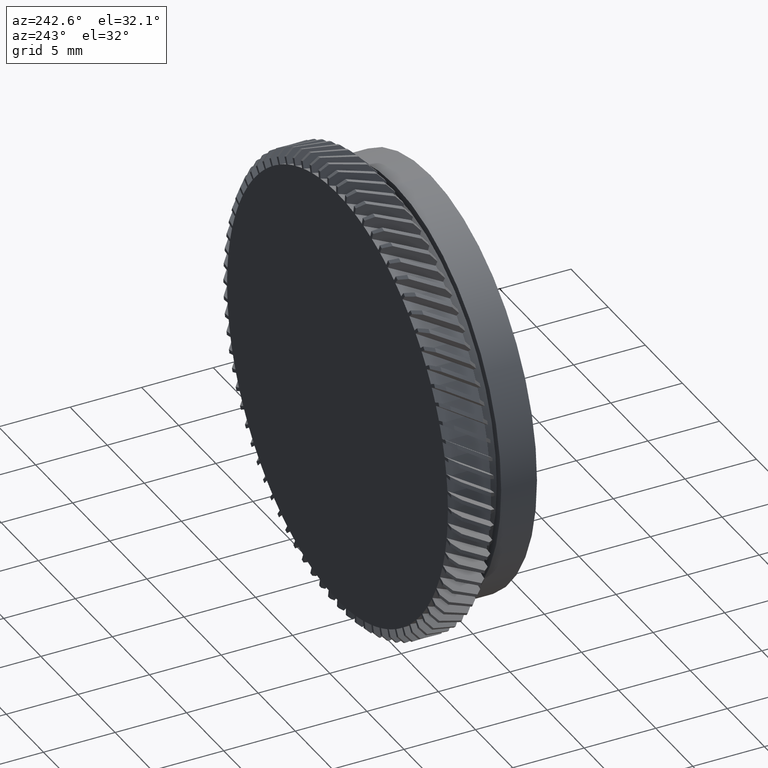
[diagram: clean part render]
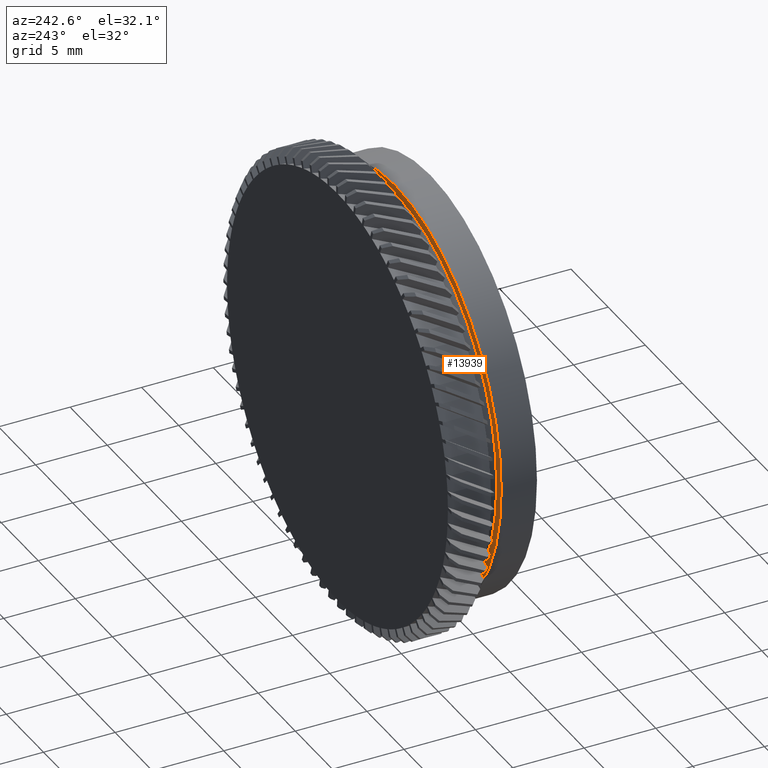
[diagram: same view with one face highlighted and labeled with its STEP entity id]
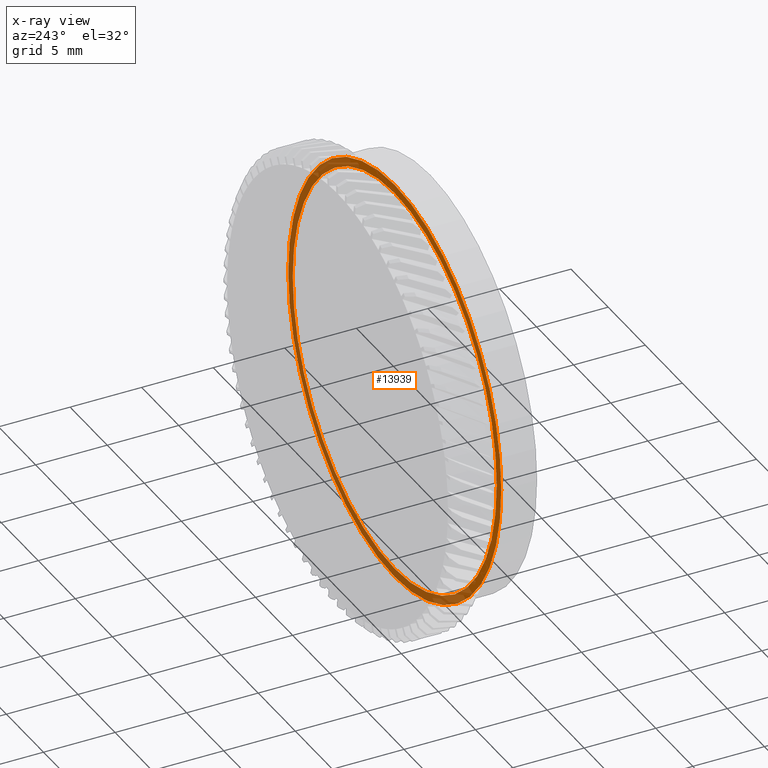
[diagram: x-ray of the same camera — body ghosted, the highlighted face saturated]
A machine part, auxiliary view. The second image highlights one B-rep face of the part: STEP entity #13939.
The next image is the same camera in x-ray: the body ghosted, the highlighted face saturated — about 57% of this face is hidden behind the body in this view.
In plain terms, the highlighted planar face has unit normal (0, -1, 0).
Its self-contained STEP definition (entity closure, byte-faithful):
#286 = FACE_OUTER_BOUND ( 'NONE', #16822, .T. ) ;
#1700 = ORIENTED_EDGE ( 'NONE', *, *, #17268, .T. ) ;
#2002 = DIRECTION ( 'NONE',  ( 0.0000000000000000000, -0.0000000000000000000, -1.000000000000000000 ) ) ;
#2298 = VERTEX_POINT ( 'NONE', #12046 ) ;
#3621 = CARTESIAN_POINT ( 'NONE',  ( 13.75000000000000500, 17.87125740523061900, 0.0000000000000000000 ) ) ;
#4104 = CARTESIAN_POINT ( 'NONE',  ( 0.0000000000000000000, 17.87125740523061500, 14.35000000000000500 ) ) ;
#4241 = ORIENTED_EDGE ( 'NONE', *, *, #5245, .F. ) ;
#4346 = DIRECTION ( 'NONE',  ( -0.0000000000000000000, 1.000000000000000000, -0.0000000000000000000 ) ) ;
#4418 = VERTEX_POINT ( 'NONE', #4104 ) ;
#5116 = CARTESIAN_POINT ( 'NONE',  ( 0.0000000000000000000, 17.87125740523061500, 0.0000000000000000000 ) ) ;
#5245 = EDGE_CURVE ( 'NONE', #8947, #2298, #16443, .T. ) ;
#6424 = AXIS2_PLACEMENT_3D ( 'NONE', #13044, #19106, #14605 ) ;
#6573 = CIRCLE ( 'NONE', #14347, 14.35000000000000500 ) ;
#6693 = DIRECTION ( 'NONE',  ( 0.0000000000000000000, 0.0000000000000000000, 1.000000000000000000 ) ) ;
#6925 = DIRECTION ( 'NONE',  ( -0.0000000000000000000, 1.000000000000000000, -0.0000000000000000000 ) ) ;
#8481 = CARTESIAN_POINT ( 'NONE',  ( 0.0000000000000000000, 17.87125740523061500, 0.0000000000000000000 ) ) ;
#8900 = CARTESIAN_POINT ( 'NONE',  ( 0.0000000000000000000, 17.87125740523061500, 0.0000000000000000000 ) ) ;
#8947 = VERTEX_POINT ( 'NONE', #9994 ) ;
#9367 = AXIS2_PLACEMENT_3D ( 'NONE', #3621, #11461, #2002 ) ;
#9994 = CARTESIAN_POINT ( 'NONE',  ( 1.683889348827611400E-015, 17.87125740523061500, -13.75000000000000500 ) ) ;
#10751 = EDGE_CURVE ( 'NONE', #2298, #8947, #13173, .T. ) ;
#11084 = AXIS2_PLACEMENT_3D ( 'NONE', #8481, #6925, #19189 ) ;
#11461 = DIRECTION ( 'NONE',  ( 0.0000000000000000000, -1.000000000000000000, 0.0000000000000000000 ) ) ;
#11484 = ORIENTED_EDGE ( 'NONE', *, *, #11667, .T. ) ;
#11667 = EDGE_CURVE ( 'NONE', #12519, #4418, #19715, .T. ) ;
#11943 = ORIENTED_EDGE ( 'NONE', *, *, #10751, .F. ) ;
#12046 = CARTESIAN_POINT ( 'NONE',  ( 0.0000000000000000000, 17.87125740523061500, 13.75000000000000500 ) ) ;
#12519 = VERTEX_POINT ( 'NONE', #15714 ) ;
#13044 = CARTESIAN_POINT ( 'NONE',  ( 0.0000000000000000000, 17.87125740523061500, 0.0000000000000000000 ) ) ;
#13173 = CIRCLE ( 'NONE', #11084, 13.75000000000000500 ) ;
#13809 = DIRECTION ( 'NONE',  ( 0.0000000000000000000, 0.0000000000000000000, 1.000000000000000000 ) ) ;
#13939 = ADVANCED_FACE ( 'NONE', ( #16287, #286 ), #19129, .F. ) ;
#14347 = AXIS2_PLACEMENT_3D ( 'NONE', #8900, #4346, #13809 ) ;
#14481 = EDGE_LOOP ( 'NONE', ( #11943, #4241 ) ) ;
#14605 = DIRECTION ( 'NONE',  ( 0.0000000000000000000, 0.0000000000000000000, 1.000000000000000000 ) ) ;
#15714 = CARTESIAN_POINT ( 'NONE',  ( 1.757368156776452400E-015, 17.87125740523061500, -14.35000000000000500 ) ) ;
#15932 = DIRECTION ( 'NONE',  ( -0.0000000000000000000, 1.000000000000000000, -0.0000000000000000000 ) ) ;
#16125 = AXIS2_PLACEMENT_3D ( 'NONE', #5116, #15932, #6693 ) ;
#16287 = FACE_BOUND ( 'NONE', #14481, .T. ) ;
#16443 = CIRCLE ( 'NONE', #6424, 13.75000000000000500 ) ;
#16822 = EDGE_LOOP ( 'NONE', ( #1700, #11484 ) ) ;
#17268 = EDGE_CURVE ( 'NONE', #4418, #12519, #6573, .T. ) ;
#19106 = DIRECTION ( 'NONE',  ( -0.0000000000000000000, 1.000000000000000000, -0.0000000000000000000 ) ) ;
#19129 = PLANE ( 'NONE',  #9367 ) ;
#19189 = DIRECTION ( 'NONE',  ( 0.0000000000000000000, 0.0000000000000000000, 1.000000000000000000 ) ) ;
#19715 = CIRCLE ( 'NONE', #16125, 14.35000000000000500 ) ;